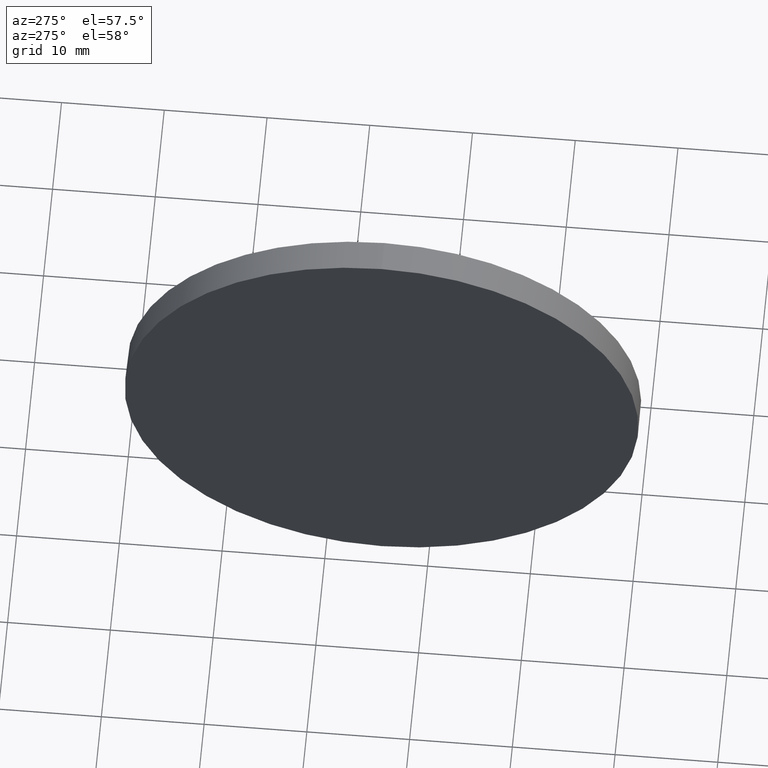
[diagram: clean part render]
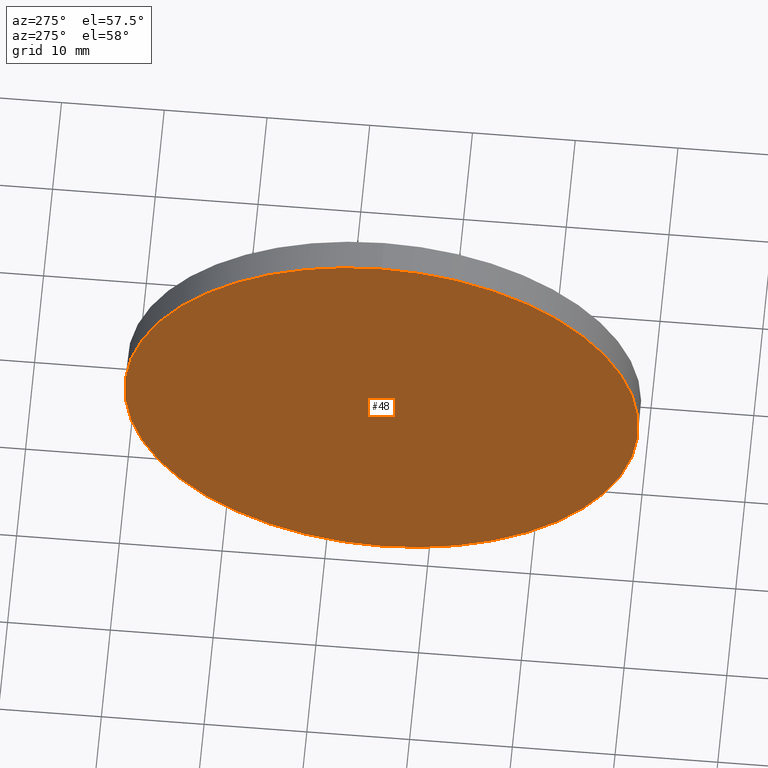
[diagram: same view with one face highlighted and labeled with its STEP entity id]
A machine part, auxiliary view. The second image highlights one B-rep face of the part: STEP entity #48.
In plain terms, the highlighted planar face has unit normal (1, 0, 0).
Its self-contained STEP definition (entity closure, byte-faithful):
#1 = DIRECTION ( 'NONE',  ( 1.000000000000000000, 0.0000000000000000000, 0.0000000000000000000 ) ) ;
#2 = CIRCLE ( 'NONE', #154, 24.99999999999999300 ) ;
#4 = CARTESIAN_POINT ( 'NONE',  ( 501.2313025247127000, 84.58581718796108400, 0.0000000000000000000 ) ) ;
#14 = DIRECTION ( 'NONE',  ( 0.0000000000000000000, 0.0000000000000000000, -1.000000000000000000 ) ) ;
#19 = DIRECTION ( 'NONE',  ( -1.000000000000000000, -0.0000000000000000000, -0.0000000000000000000 ) ) ;
#23 = EDGE_CURVE ( 'NONE', #93, #87, #24, .T. ) ;
#24 = CIRCLE ( 'NONE', #56, 24.99999999999999300 ) ;
#27 = AXIS2_PLACEMENT_3D ( 'NONE', #70, #1, #14 ) ;
#48 = ADVANCED_FACE ( 'NONE', ( #85 ), #126, .F. ) ;
#56 = AXIS2_PLACEMENT_3D ( 'NONE', #83, #128, #186 ) ;
#70 = CARTESIAN_POINT ( 'NONE',  ( 501.2313025247127000, 84.58581718796108400, 0.0000000000000000000 ) ) ;
#81 = ORIENTED_EDGE ( 'NONE', *, *, #23, .T. ) ;
#83 = CARTESIAN_POINT ( 'NONE',  ( 501.2313025247127000, 84.58581718796108400, 0.0000000000000000000 ) ) ;
#85 = FACE_OUTER_BOUND ( 'NONE', #122, .T. ) ;
#87 = VERTEX_POINT ( 'NONE', #144 ) ;
#93 = VERTEX_POINT ( 'NONE', #123 ) ;
#106 = DIRECTION ( 'NONE',  ( 0.0000000000000000000, 0.0000000000000000000, 1.000000000000000000 ) ) ;
#122 = EDGE_LOOP ( 'NONE', ( #169, #81 ) ) ;
#123 = CARTESIAN_POINT ( 'NONE',  ( 501.2313025247127000, 84.58581718796108400, -24.99999999999999300 ) ) ;
#126 = PLANE ( 'NONE',  #27 ) ;
#128 = DIRECTION ( 'NONE',  ( -1.000000000000000000, -0.0000000000000000000, -0.0000000000000000000 ) ) ;
#144 = CARTESIAN_POINT ( 'NONE',  ( 501.2313025247127000, 84.58581718796108400, 24.99999999999999300 ) ) ;
#154 = AXIS2_PLACEMENT_3D ( 'NONE', #4, #19, #106 ) ;
#165 = EDGE_CURVE ( 'NONE', #87, #93, #2, .T. ) ;
#169 = ORIENTED_EDGE ( 'NONE', *, *, #165, .T. ) ;
#186 = DIRECTION ( 'NONE',  ( 0.0000000000000000000, 0.0000000000000000000, 1.000000000000000000 ) ) ;